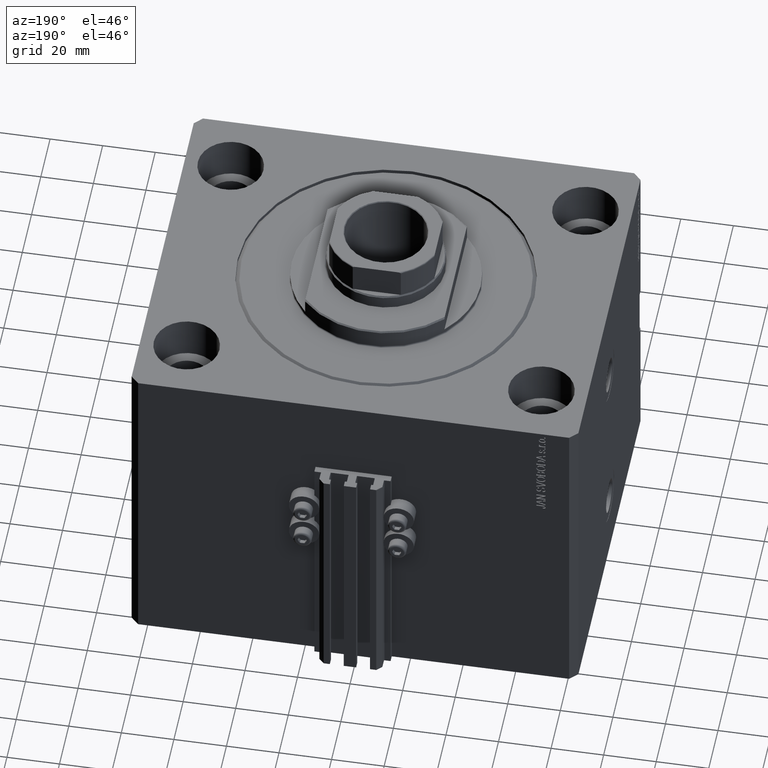
[diagram: clean part render]
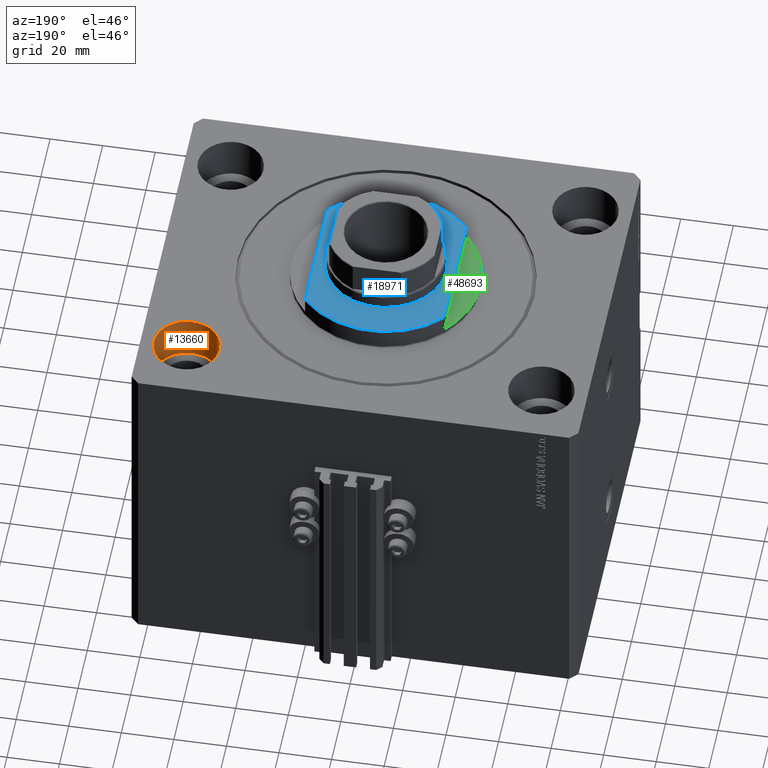
[diagram: same view with three faces highlighted in distinct colors, each labeled with its STEP entity id]
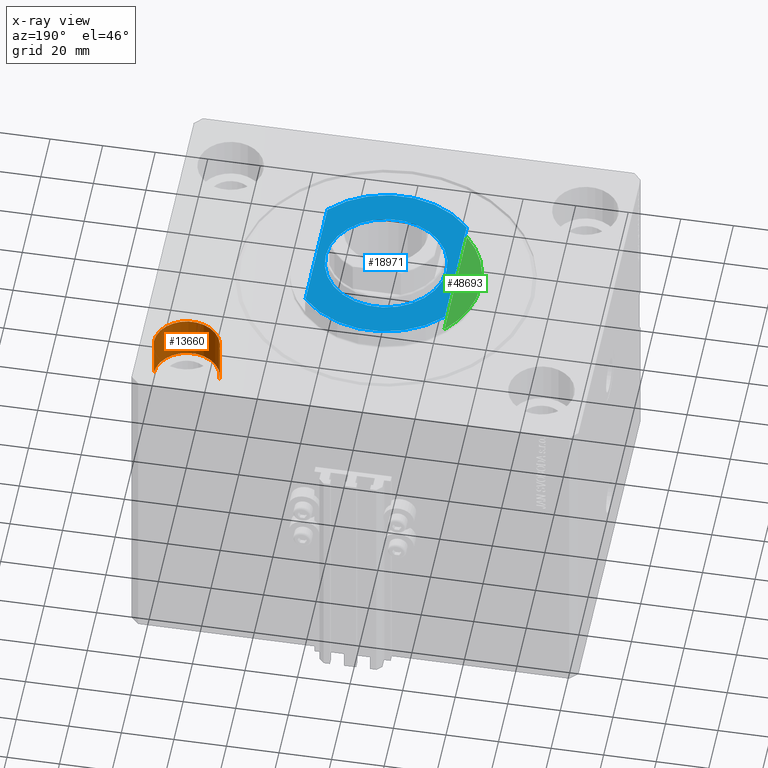
[diagram: x-ray of the same camera — body ghosted, the three highlighted faces saturated]
A machine part, auxiliary view with three faces highlighted in distinct colors.
The next image is the same camera in x-ray (body ghosted, the three faces saturated) — at least one of them is partly hidden behind the body in this view.
Their STEP definitions:

[orange] entity #13660 — the highlighted cylindrical surface (edge-blend (fillet) strip) has radius 12.5 mm, axis along (0, 0, 1).
#1133 = AXIS2_PLACEMENT_3D ( 'NONE', #25489, #5962, #2242 ) ;
#2242 = DIRECTION ( 'NONE',  ( 1.000000000000000000, 0.000000000000000000, 0.000000000000000000 ) ) ;
#2758 = CIRCLE ( 'NONE', #15418, 12.49999999999999645 ) ;
#5617 = CARTESIAN_POINT ( 'NONE',  ( 67.50000000000000000, 47.50000000000001421, 0.000000000000000000 ) ) ;
#5962 = DIRECTION ( 'NONE',  ( -0.000000000000000000, -0.000000000000000000, 1.000000000000000000 ) ) ;
#7292 = EDGE_CURVE ( 'NONE', #24163, #35098, #35443, .T. ) ;
#10420 = FACE_OUTER_BOUND ( 'NONE', #45787, .T. ) ;
#10519 = DIRECTION ( 'NONE',  ( 1.000000000000000000, 0.000000000000000000, 0.000000000000000000 ) ) ;
#11161 = VERTEX_POINT ( 'NONE', #45041 ) ;
#12313 = EDGE_CURVE ( 'NONE', #35098, #38622, #2758, .T. ) ;
#13660 = ADVANCED_FACE ( 'NONE', ( #10420 ), #39836, .F. ) ;
#14557 = EDGE_CURVE ( 'NONE', #11161, #38622, #33662, .T. ) ;
#15418 = AXIS2_PLACEMENT_3D ( 'NONE', #5617, #39010, #27404 ) ;
#17847 = ORIENTED_EDGE ( 'NONE', *, *, #7292, .T. ) ;
#18590 = ORIENTED_EDGE ( 'NONE', *, *, #20191, .F. ) ;
#18592 = CARTESIAN_POINT ( 'NONE',  ( 80.00000000000000000, 47.50000000000001421, -17.00000000000000000 ) ) ;
#20191 = EDGE_CURVE ( 'NONE', #24163, #11161, #20312, .T. ) ;
#20312 = CIRCLE ( 'NONE', #27401, 12.49999999999999645 ) ;
#24163 = VERTEX_POINT ( 'NONE', #41714 ) ;
#25489 = CARTESIAN_POINT ( 'NONE',  ( 67.50000000000000000, 47.50000000000001421, -17.00000000000000000 ) ) ;
#27401 = AXIS2_PLACEMENT_3D ( 'NONE', #48113, #33009, #10519 ) ;
#27404 = DIRECTION ( 'NONE',  ( 1.000000000000000000, 0.000000000000000000, 0.000000000000000000 ) ) ;
#27976 = VECTOR ( 'NONE', #37111, 1000.000000000000000 ) ;
#28662 = CARTESIAN_POINT ( 'NONE',  ( 55.00000000000000711, 47.50000000000001421, 0.000000000000000000 ) ) ;
#28899 = ORIENTED_EDGE ( 'NONE', *, *, #14557, .F. ) ;
#31987 = CARTESIAN_POINT ( 'NONE',  ( 80.00000000000000000, 47.50000000000001421, 0.000000000000000000 ) ) ;
#33009 = DIRECTION ( 'NONE',  ( 0.000000000000000000, 0.000000000000000000, 1.000000000000000000 ) ) ;
#33662 = LINE ( 'NONE', #18592, #27976 ) ;
#35098 = VERTEX_POINT ( 'NONE', #28662 ) ;
#35443 = LINE ( 'NONE', #42868, #38143 ) ;
#37111 = DIRECTION ( 'NONE',  ( -0.000000000000000000, -0.000000000000000000, 1.000000000000000000 ) ) ;
#38143 = VECTOR ( 'NONE', #39633, 1000.000000000000000 ) ;
#38622 = VERTEX_POINT ( 'NONE', #31987 ) ;
#39010 = DIRECTION ( 'NONE',  ( 0.000000000000000000, 0.000000000000000000, 1.000000000000000000 ) ) ;
#39633 = DIRECTION ( 'NONE',  ( -0.000000000000000000, -0.000000000000000000, 1.000000000000000000 ) ) ;
#39836 = CYLINDRICAL_SURFACE ( 'NONE', #1133, 12.49999999999999645 ) ;
#41714 = CARTESIAN_POINT ( 'NONE',  ( 55.00000000000000711, 47.50000000000001421, -17.00000000000000000 ) ) ;
#42868 = CARTESIAN_POINT ( 'NONE',  ( 55.00000000000000711, 47.50000000000001421, -17.00000000000000000 ) ) ;
#42898 = ORIENTED_EDGE ( 'NONE', *, *, #12313, .T. ) ;
#45041 = CARTESIAN_POINT ( 'NONE',  ( 80.00000000000000000, 47.50000000000001421, -17.00000000000000000 ) ) ;
#45787 = EDGE_LOOP ( 'NONE', ( #18590, #17847, #42898, #28899 ) ) ;
#48113 = CARTESIAN_POINT ( 'NONE',  ( 67.50000000000000000, 47.50000000000001421, -17.00000000000000000 ) ) ;

[blue] entity #18971 — the highlighted planar face has unit normal (0, 0, 1).
#285 = DIRECTION ( 'NONE',  ( 0.000000000000000000, -1.000000000000000000, -0.000000000000000000 ) ) ;
#1949 = ORIENTED_EDGE ( 'NONE', *, *, #13994, .T. ) ;
#3213 = DIRECTION ( 'NONE',  ( -1.000000000000000000, 0.000000000000000000, 0.000000000000000000 ) ) ;
#5538 = DIRECTION ( 'NONE',  ( -1.000000000000000000, 0.000000000000000000, -0.000000000000000000 ) ) ;
#6375 = CARTESIAN_POINT ( 'NONE',  ( -23.00000000000001776, 0.000000000000000000, -8.000000000000000000 ) ) ;
#6421 = CARTESIAN_POINT ( 'NONE',  ( 0.000000000000000000, 0.000000000000000000, -8.000000000000000000 ) ) ;
#7131 = ORIENTED_EDGE ( 'NONE', *, *, #42747, .T. ) ;
#7233 = LINE ( 'NONE', #45072, #45825 ) ;
#7312 = DIRECTION ( 'NONE',  ( -1.000000000000000000, 0.000000000000000000, 0.000000000000000000 ) ) ;
#7767 = VECTOR ( 'NONE', #285, 1000.000000000000000 ) ;
#9258 = DIRECTION ( 'NONE',  ( 0.000000000000000000, 0.000000000000000000, -1.000000000000000000 ) ) ;
#10424 = VERTEX_POINT ( 'NONE', #11068 ) ;
#11042 = VERTEX_POINT ( 'NONE', #41809 ) ;
#11068 = CARTESIAN_POINT ( 'NONE',  ( 23.00000000000001776, 2.816687638038914718E-15, -8.000000000000000000 ) ) ;
#12210 = AXIS2_PLACEMENT_3D ( 'NONE', #15291, #41976, #45468 ) ;
#12489 = PLANE ( 'NONE',  #33695 ) ;
#13264 = EDGE_LOOP ( 'NONE', ( #1949, #45321 ) ) ;
#13994 = EDGE_CURVE ( 'NONE', #41789, #10424, #20070, .T. ) ;
#14730 = DIRECTION ( 'NONE',  ( -0.000000000000000000, -1.000000000000000000, -0.000000000000000000 ) ) ;
#15123 = CARTESIAN_POINT ( 'NONE',  ( 26.50000000000000000, -36.36963018783666257, -8.000000000000000000 ) ) ;
#15291 = CARTESIAN_POINT ( 'NONE',  ( 0.000000000000000000, 0.000000000000000000, -8.000000000000000000 ) ) ;
#16925 = FACE_OUTER_BOUND ( 'NONE', #33589, .T. ) ;
#17717 = CIRCLE ( 'NONE', #29580, 23.00000000000001776 ) ;
#17834 = CARTESIAN_POINT ( 'NONE',  ( 0.000000000000000000, 0.000000000000000000, -8.000000000000000000 ) ) ;
#18734 = CARTESIAN_POINT ( 'NONE',  ( 26.50000000000000000, 23.62202362203536765, -8.000000000000000000 ) ) ;
#18971 = ADVANCED_FACE ( 'NONE', ( #46365, #16925 ), #12489, .T. ) ;
#19794 = ORIENTED_EDGE ( 'NONE', *, *, #33281, .F. ) ;
#20070 = CIRCLE ( 'NONE', #12210, 23.00000000000001776 ) ;
#22774 = CIRCLE ( 'NONE', #39308, 35.49999999999996447 ) ;
#25858 = CARTESIAN_POINT ( 'NONE',  ( 0.000000000000000000, 0.000000000000000000, -8.000000000000000000 ) ) ;
#27505 = ORIENTED_EDGE ( 'NONE', *, *, #29653, .T. ) ;
#27800 = AXIS2_PLACEMENT_3D ( 'NONE', #25858, #29828, #7312 ) ;
#29329 = EDGE_CURVE ( 'NONE', #38074, #39541, #31188, .T. ) ;
#29580 = AXIS2_PLACEMENT_3D ( 'NONE', #17834, #32171, #3213 ) ;
#29653 = EDGE_CURVE ( 'NONE', #47687, #38074, #22774, .T. ) ;
#29828 = DIRECTION ( 'NONE',  ( 0.000000000000000000, 0.000000000000000000, -1.000000000000000000 ) ) ;
#30213 = CARTESIAN_POINT ( 'NONE',  ( 26.50000000000000000, -23.62202362203536765, -8.000000000000000000 ) ) ;
#31188 = LINE ( 'NONE', #15123, #7767 ) ;
#32171 = DIRECTION ( 'NONE',  ( -0.000000000000000000, -0.000000000000000000, 1.000000000000000000 ) ) ;
#33281 = EDGE_CURVE ( 'NONE', #47687, #11042, #7233, .T. ) ;
#33589 = EDGE_LOOP ( 'NONE', ( #27505, #48946, #7131, #19794 ) ) ;
#33695 = AXIS2_PLACEMENT_3D ( 'NONE', #38443, #9258, #5538 ) ;
#36159 = CARTESIAN_POINT ( 'NONE',  ( -26.50000000000000000, 23.62202362203536765, -8.000000000000000000 ) ) ;
#38074 = VERTEX_POINT ( 'NONE', #18734 ) ;
#38443 = CARTESIAN_POINT ( 'NONE',  ( 0.000000000000000000, 0.000000000000000000, -8.000000000000000000 ) ) ;
#39308 = AXIS2_PLACEMENT_3D ( 'NONE', #6421, #48232, #48722 ) ;
#39541 = VERTEX_POINT ( 'NONE', #30213 ) ;
#41789 = VERTEX_POINT ( 'NONE', #6375 ) ;
#41809 = CARTESIAN_POINT ( 'NONE',  ( -26.50000000000000711, -23.62202362203537476, -8.000000000000000000 ) ) ;
#41976 = DIRECTION ( 'NONE',  ( -0.000000000000000000, -0.000000000000000000, 1.000000000000000000 ) ) ;
#42747 = EDGE_CURVE ( 'NONE', #39541, #11042, #47547, .T. ) ;
#45072 = CARTESIAN_POINT ( 'NONE',  ( -26.50000000000000000, -36.36963018783666257, -8.000000000000000000 ) ) ;
#45321 = ORIENTED_EDGE ( 'NONE', *, *, #47888, .T. ) ;
#45468 = DIRECTION ( 'NONE',  ( -1.000000000000000000, 0.000000000000000000, 0.000000000000000000 ) ) ;
#45825 = VECTOR ( 'NONE', #14730, 1000.000000000000000 ) ;
#46365 = FACE_BOUND ( 'NONE', #13264, .T. ) ;
#47547 = CIRCLE ( 'NONE', #27800, 35.49999999999996447 ) ;
#47687 = VERTEX_POINT ( 'NONE', #36159 ) ;
#47888 = EDGE_CURVE ( 'NONE', #10424, #41789, #17717, .T. ) ;
#48232 = DIRECTION ( 'NONE',  ( 0.000000000000000000, 0.000000000000000000, -1.000000000000000000 ) ) ;
#48722 = DIRECTION ( 'NONE',  ( -1.000000000000000000, 0.000000000000000000, 0.000000000000000000 ) ) ;
#48946 = ORIENTED_EDGE ( 'NONE', *, *, #29329, .T. ) ;

[green] entity #48693 — the highlighted planar face has unit normal (0, 0, 1).
#541 = FACE_OUTER_BOUND ( 'NONE', #29395, .T. ) ;
#608 = ORIENTED_EDGE ( 'NONE', *, *, #47818, .T. ) ;
#1100 = AXIS2_PLACEMENT_3D ( 'NONE', #3518, #18627, #48790 ) ;
#1418 = VERTEX_POINT ( 'NONE', #26847 ) ;
#3518 = CARTESIAN_POINT ( 'NONE',  ( 0.000000000000000000, 0.000000000000000000, -2.000000000000000000 ) ) ;
#4251 = DIRECTION ( 'NONE',  ( 0.000000000000000000, 0.000000000000000000, -1.000000000000000000 ) ) ;
#5082 = CARTESIAN_POINT ( 'NONE',  ( 0.000000000000000000, 0.000000000000000000, -2.000000000000000000 ) ) ;
#7734 = PLANE ( 'NONE',  #39053 ) ;
#8774 = VECTOR ( 'NONE', #15722, 1000.000000000000000 ) ;
#15388 = CARTESIAN_POINT ( 'NONE',  ( 26.50000000000000000, 24.36698586202240691, -2.000000000000000000 ) ) ;
#15722 = DIRECTION ( 'NONE',  ( 0.000000000000000000, -1.000000000000000000, -0.000000000000000000 ) ) ;
#15959 = LINE ( 'NONE', #48712, #8774 ) ;
#18627 = DIRECTION ( 'NONE',  ( 0.000000000000000000, 0.000000000000000000, -1.000000000000000000 ) ) ;
#19367 = VERTEX_POINT ( 'NONE', #27347 ) ;
#20565 = AXIS2_PLACEMENT_3D ( 'NONE', #5082, #23395, #38472 ) ;
#20748 = VERTEX_POINT ( 'NONE', #15388 ) ;
#22445 = CIRCLE ( 'NONE', #1100, 36.00000000000000000 ) ;
#23300 = ORIENTED_EDGE ( 'NONE', *, *, #39768, .F. ) ;
#23395 = DIRECTION ( 'NONE',  ( 0.000000000000000000, 0.000000000000000000, -1.000000000000000000 ) ) ;
#24080 = ORIENTED_EDGE ( 'NONE', *, *, #38264, .T. ) ;
#26847 = CARTESIAN_POINT ( 'NONE',  ( 26.50000000000000000, -24.36698586202240691, -2.000000000000000000 ) ) ;
#27252 = DIRECTION ( 'NONE',  ( 1.000000000000000000, 0.000000000000000000, 0.000000000000000000 ) ) ;
#27347 = CARTESIAN_POINT ( 'NONE',  ( 36.00000000000000000, 0.000000000000000000, -2.000000000000000000 ) ) ;
#28482 = CIRCLE ( 'NONE', #20565, 36.00000000000000000 ) ;
#29395 = EDGE_LOOP ( 'NONE', ( #608, #24080, #23300 ) ) ;
#30967 = CARTESIAN_POINT ( 'NONE',  ( 0.000000000000000000, 0.000000000000000000, -2.000000000000000000 ) ) ;
#38264 = EDGE_CURVE ( 'NONE', #19367, #1418, #28482, .T. ) ;
#38472 = DIRECTION ( 'NONE',  ( -1.000000000000000000, 0.000000000000000000, 0.000000000000000000 ) ) ;
#39053 = AXIS2_PLACEMENT_3D ( 'NONE', #30967, #4251, #27252 ) ;
#39768 = EDGE_CURVE ( 'NONE', #20748, #1418, #15959, .T. ) ;
#47818 = EDGE_CURVE ( 'NONE', #20748, #19367, #22445, .T. ) ;
#48693 = ADVANCED_FACE ( 'NONE', ( #541 ), #7734, .T. ) ;
#48712 = CARTESIAN_POINT ( 'NONE',  ( 26.50000000000000000, -36.36963018783666257, -2.000000000000000000 ) ) ;
#48790 = DIRECTION ( 'NONE',  ( -1.000000000000000000, 0.000000000000000000, 0.000000000000000000 ) ) ;